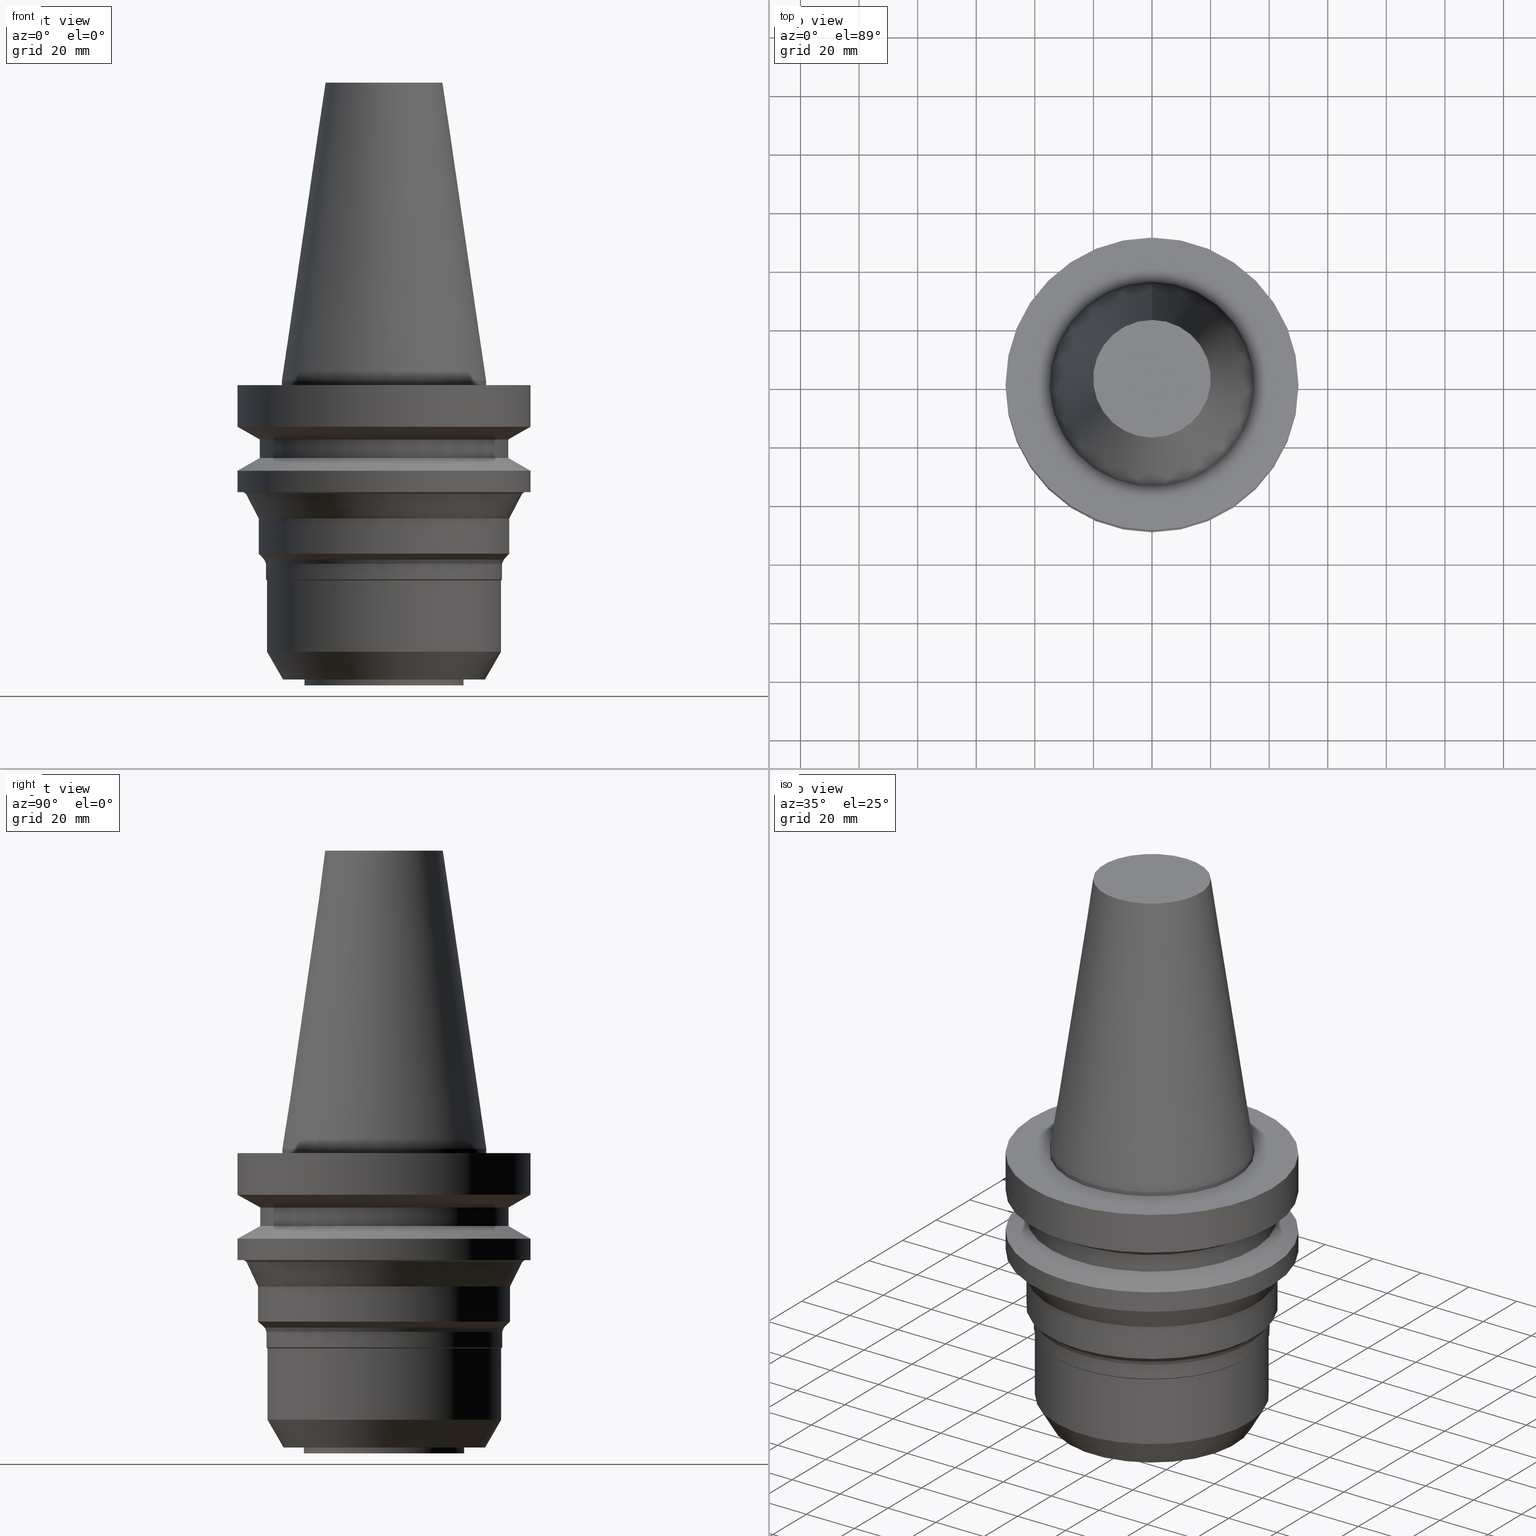
[diagram: canonical four-view strip — front | top / right | iso, engineering-drawing reading convention]
A machine part, canonical four-view strip (front | top / right | iso — engineering-drawing reading convention). The complete STEP part file that produces these views, byte-faithful:
ISO-10303-21;
HEADER;
FILE_DESCRIPTION((''),'1');
FILE_NAME('V:/90_\X2\53D65F9730C730FC30BF\X0\/00_\X2\6DE18DEF30C730FC30BF\X0\/ALL/BBT-BKUS\X2\FF76FF80FF9BFF78FF9E752852A05DE556F3\X0\201801/BBT50-MEGADS/BBT50-MEGA1.250DS-4.stp','2018-02-05T01:30:22',(''),(''),'Spatial Interop R21 SP3','Kubotek KeyCreator 2011 V10.0.2 (22737)',' ');
FILE_SCHEMA(('automotive_design'));
ENDSEC;
DATA;
#1=MECHANICAL_DESIGN_GEOMETRIC_PRESENTATION_REPRESENTATION(' ',(#10,#11,#12,#13,#14,#15,#16,#17,#18,#19,#20,#21,#22,#23,#24,#25,#26,#27,#28,#29,#30,#31,#32,#33,#34,#35,#36,#37,#38,#39,#40,#41,#42,#43,#44,#45,#46,#47,#48,#49,#50,#51,#52,#53),#6);
#2=PRODUCT_DEFINITION_CONTEXT('',#54,'design');
#3=APPLICATION_PROTOCOL_DEFINITION('INTERNATIONAL STANDARD','automotive_design',1994,#54);
#4=PRODUCT_CATEGORY_RELATIONSHIP('NONE','NONE',#55,#56);
#5=SHAPE_DEFINITION_REPRESENTATION(#57,#58);
#6= (GEOMETRIC_REPRESENTATION_CONTEXT(3)GLOBAL_UNCERTAINTY_ASSIGNED_CONTEXT((#61))GLOBAL_UNIT_ASSIGNED_CONTEXT((#63,#64,#65))REPRESENTATION_CONTEXT('NONE','WORKSPACE'));
#10=STYLED_ITEM('',(#67),#68);
#11=STYLED_ITEM('',(#69,#70),#71);
#12=STYLED_ITEM('',(#72),#73);
#13=STYLED_ITEM('',(#74,#75),#76);
#14=STYLED_ITEM('',(#77,#78),#79);
#15=STYLED_ITEM('',(#80,#81),#82);
#16=STYLED_ITEM('',(#83),#84);
#17=STYLED_ITEM('',(#85,#86),#87);
#18=STYLED_ITEM('',(#88,#89),#90);
#19=STYLED_ITEM('',(#91,#92),#93);
#20=STYLED_ITEM('',(#94),#95);
#21=STYLED_ITEM('',(#96),#97);
#22=STYLED_ITEM('',(#98,#99),#100);
#23=STYLED_ITEM('',(#101),#102);
#24=STYLED_ITEM('',(#103),#104);
#25=STYLED_ITEM('',(#105),#106);
#26=STYLED_ITEM('',(#107,#108),#109);
#27=STYLED_ITEM('',(#110),#111);
#28=STYLED_ITEM('',(#112),#113);
#29=STYLED_ITEM('',(#114,#115),#116);
#30=STYLED_ITEM('',(#117,#118),#119);
#31=STYLED_ITEM('',(#120,#121),#122);
#32=STYLED_ITEM('',(#123,#124),#125);
#33=STYLED_ITEM('',(#126),#127);
#34=STYLED_ITEM('',(#128),#129);
#35=STYLED_ITEM('',(#130),#131);
#36=STYLED_ITEM('',(#132,#133),#134);
#37=STYLED_ITEM('',(#135),#136);
#38=STYLED_ITEM('',(#137,#138),#139);
#39=STYLED_ITEM('',(#140),#141);
#40=STYLED_ITEM('',(#142),#143);
#41=STYLED_ITEM('',(#144,#145),#146);
#42=STYLED_ITEM('',(#147,#148),#149);
#43=STYLED_ITEM('',(#150),#151);
#44=STYLED_ITEM('',(#152,#153),#154);
#45=STYLED_ITEM('',(#155),#156);
#46=STYLED_ITEM('',(#157),#158);
#47=STYLED_ITEM('',(#159),#160);
#48=STYLED_ITEM('',(#161,#162),#163);
#49=STYLED_ITEM('',(#164,#165),#166);
#50=STYLED_ITEM('',(#167),#168);
#51=STYLED_ITEM('',(#169,#170),#171);
#52=STYLED_ITEM('',(#172,#173),#174);
#53=STYLED_ITEM('',(#175,#176),#177);
#54=APPLICATION_CONTEXT(' ');
#55=PRODUCT_CATEGORY('part','NONE');
#56=PRODUCT_RELATED_PRODUCT_CATEGORY('detail',' ',(#178));
#57=PRODUCT_DEFINITION_SHAPE('NONE','NONE',#179);
#58=ADVANCED_BREP_SHAPE_REPRESENTATION('Unnamed[1]',(#76,#180),#6);
#61=UNCERTAINTY_MEASURE_WITH_UNIT(LENGTH_MEASURE(1.0E-006),#63,'','');
#63= (CONVERSION_BASED_UNIT('MILLIMETRE',#183)LENGTH_UNIT()NAMED_UNIT(#186));
#64= (NAMED_UNIT(#188)PLANE_ANGLE_UNIT()SI_UNIT($,.RADIAN.));
#65= (NAMED_UNIT(#188)SOLID_ANGLE_UNIT()SI_UNIT($,.STERADIAN.));
#67=PRESENTATION_STYLE_ASSIGNMENT((#194));
#68=EDGE_CURVE('Unnamed[1]',#195,#195,#196,.T.);
#69=PRESENTATION_STYLE_ASSIGNMENT((#197));
#70=PRESENTATION_STYLE_ASSIGNMENT((#198));
#71=ADVANCED_FACE('Unnamed[1]',(#199),#200,.T.);
#72=PRESENTATION_STYLE_ASSIGNMENT((#201));
#73=EDGE_CURVE('Unnamed[1]',#202,#202,#203,.T.);
#74=PRESENTATION_STYLE_ASSIGNMENT((#204));
#75=PRESENTATION_STYLE_ASSIGNMENT((#205));
#76=MANIFOLD_SOLID_BREP('Unnamed[1]',#206);
#77=PRESENTATION_STYLE_ASSIGNMENT((#207));
#78=PRESENTATION_STYLE_ASSIGNMENT((#208));
#79=ADVANCED_FACE('Unnamed[1]',(#209,#210),#211,.T.);
#80=PRESENTATION_STYLE_ASSIGNMENT((#212));
#81=PRESENTATION_STYLE_ASSIGNMENT((#213));
#82=ADVANCED_FACE('Unnamed[1]',(#214),#215,.T.);
#83=PRESENTATION_STYLE_ASSIGNMENT((#216));
#84=EDGE_CURVE('Unnamed[1]',#217,#217,#218,.T.);
#85=PRESENTATION_STYLE_ASSIGNMENT((#219));
#86=PRESENTATION_STYLE_ASSIGNMENT((#220));
#87=ADVANCED_FACE('Unnamed[1]',(#221,#222),#223,.T.);
#88=PRESENTATION_STYLE_ASSIGNMENT((#224));
#89=PRESENTATION_STYLE_ASSIGNMENT((#225));
#90=ADVANCED_FACE('Unnamed[1]',(#226,#227),#228,.T.);
#91=PRESENTATION_STYLE_ASSIGNMENT((#229));
#92=PRESENTATION_STYLE_ASSIGNMENT((#230));
#93=ADVANCED_FACE('Unnamed[1]',(#231,#232),#233,.T.);
#94=PRESENTATION_STYLE_ASSIGNMENT((#234));
#95=EDGE_CURVE('Unnamed[1]',#235,#235,#236,.T.);
#96=PRESENTATION_STYLE_ASSIGNMENT((#237));
#97=EDGE_CURVE('Unnamed[1]',#238,#238,#239,.T.);
#98=PRESENTATION_STYLE_ASSIGNMENT((#240));
#99=PRESENTATION_STYLE_ASSIGNMENT((#241));
#100=ADVANCED_FACE('Unnamed[1]',(#242,#243),#244,.T.);
#101=PRESENTATION_STYLE_ASSIGNMENT((#245));
#102=EDGE_CURVE('Unnamed[1]',#246,#246,#247,.T.);
#103=PRESENTATION_STYLE_ASSIGNMENT((#248));
#104=EDGE_CURVE('Unnamed[1]',#249,#249,#250,.T.);
#105=PRESENTATION_STYLE_ASSIGNMENT((#251));
#106=EDGE_CURVE('Unnamed[1]',#252,#252,#253,.T.);
#107=PRESENTATION_STYLE_ASSIGNMENT((#254));
#108=PRESENTATION_STYLE_ASSIGNMENT((#255));
#109=ADVANCED_FACE('Unnamed[1]',(#256,#257),#258,.T.);
#110=PRESENTATION_STYLE_ASSIGNMENT((#259));
#111=EDGE_CURVE('Unnamed[1]',#260,#260,#261,.T.);
#112=PRESENTATION_STYLE_ASSIGNMENT((#262));
#113=EDGE_CURVE('Unnamed[1]',#263,#263,#264,.T.);
#114=PRESENTATION_STYLE_ASSIGNMENT((#265));
#115=PRESENTATION_STYLE_ASSIGNMENT((#266));
#116=ADVANCED_FACE('Unnamed[1]',(#267,#268),#269,.T.);
#117=PRESENTATION_STYLE_ASSIGNMENT((#270));
#118=PRESENTATION_STYLE_ASSIGNMENT((#271));
#119=ADVANCED_FACE('Unnamed[1]',(#272,#273),#274,.T.);
#120=PRESENTATION_STYLE_ASSIGNMENT((#275));
#121=PRESENTATION_STYLE_ASSIGNMENT((#276));
#122=ADVANCED_FACE('Unnamed[1]',(#277,#278),#279,.T.);
#123=PRESENTATION_STYLE_ASSIGNMENT((#280));
#124=PRESENTATION_STYLE_ASSIGNMENT((#281));
#125=ADVANCED_FACE('Unnamed[1]',(#282,#283),#284,.T.);
#126=PRESENTATION_STYLE_ASSIGNMENT((#285));
#127=EDGE_CURVE('Unnamed[1]',#286,#286,#287,.T.);
#128=PRESENTATION_STYLE_ASSIGNMENT((#288));
#129=EDGE_CURVE('Unnamed[1]',#289,#289,#290,.T.);
#130=PRESENTATION_STYLE_ASSIGNMENT((#291));
#131=EDGE_CURVE('Unnamed[1]',#292,#292,#293,.T.);
#132=PRESENTATION_STYLE_ASSIGNMENT((#294));
#133=PRESENTATION_STYLE_ASSIGNMENT((#295));
#134=ADVANCED_FACE('Unnamed[1]',(#296,#297),#298,.T.);
#135=PRESENTATION_STYLE_ASSIGNMENT((#299));
#136=EDGE_CURVE('Unnamed[1]',#300,#300,#301,.T.);
#137=PRESENTATION_STYLE_ASSIGNMENT((#302));
#138=PRESENTATION_STYLE_ASSIGNMENT((#303));
#139=ADVANCED_FACE('Unnamed[1]',(#304,#305),#306,.T.);
#140=PRESENTATION_STYLE_ASSIGNMENT((#307));
#141=EDGE_CURVE('Unnamed[1]',#308,#308,#309,.T.);
#142=PRESENTATION_STYLE_ASSIGNMENT((#310));
#143=EDGE_CURVE('Unnamed[1]',#311,#311,#312,.T.);
#144=PRESENTATION_STYLE_ASSIGNMENT((#313));
#145=PRESENTATION_STYLE_ASSIGNMENT((#314));
#146=ADVANCED_FACE('Unnamed[1]',(#315,#316),#317,.T.);
#147=PRESENTATION_STYLE_ASSIGNMENT((#318));
#148=PRESENTATION_STYLE_ASSIGNMENT((#319));
#149=ADVANCED_FACE('Unnamed[1]',(#320,#321),#322,.T.);
#150=PRESENTATION_STYLE_ASSIGNMENT((#323));
#151=EDGE_CURVE('Unnamed[1]',#324,#324,#325,.T.);
#152=PRESENTATION_STYLE_ASSIGNMENT((#326));
#153=PRESENTATION_STYLE_ASSIGNMENT((#327));
#154=ADVANCED_FACE('Unnamed[1]',(#328,#329),#330,.T.);
#155=PRESENTATION_STYLE_ASSIGNMENT((#331));
#156=EDGE_CURVE('Unnamed[1]',#332,#332,#333,.T.);
#157=PRESENTATION_STYLE_ASSIGNMENT((#334));
#158=EDGE_CURVE('Unnamed[1]',#335,#335,#336,.T.);
#159=PRESENTATION_STYLE_ASSIGNMENT((#337));
#160=EDGE_CURVE('Unnamed[1]',#338,#338,#339,.T.);
#161=PRESENTATION_STYLE_ASSIGNMENT((#340));
#162=PRESENTATION_STYLE_ASSIGNMENT((#341));
#163=ADVANCED_FACE('Unnamed[1]',(#342,#343),#344,.T.);
#164=PRESENTATION_STYLE_ASSIGNMENT((#345));
#165=PRESENTATION_STYLE_ASSIGNMENT((#346));
#166=ADVANCED_FACE('Unnamed[1]',(#347,#348),#349,.T.);
#167=PRESENTATION_STYLE_ASSIGNMENT((#350));
#168=EDGE_CURVE('Unnamed[1]',#351,#351,#352,.T.);
#169=PRESENTATION_STYLE_ASSIGNMENT((#353));
#170=PRESENTATION_STYLE_ASSIGNMENT((#354));
#171=ADVANCED_FACE('Unnamed[1]',(#355,#356),#357,.T.);
#172=PRESENTATION_STYLE_ASSIGNMENT((#358));
#173=PRESENTATION_STYLE_ASSIGNMENT((#359));
#174=ADVANCED_FACE('Unnamed[1]',(#360,#361),#362,.T.);
#175=PRESENTATION_STYLE_ASSIGNMENT((#363));
#176=PRESENTATION_STYLE_ASSIGNMENT((#364));
#177=ADVANCED_FACE('Unnamed[1]',(#365,#366),#367,.T.);
#178=PRODUCT('Unnamed[1]','Unnamed[1]','PART-Unnamed[1]-DESC',(#368));
#179=PRODUCT_DEFINITION('NONE','NONE',#369,#2);
#180=AXIS2_PLACEMENT_3D('',#370,#371,#372);
#183=LENGTH_MEASURE_WITH_UNIT(LENGTH_MEASURE(1.0),#373);
#186=DIMENSIONAL_EXPONENTS(1.0,0.0,0.0,0.0,0.0,0.0,0.0);
#188=DIMENSIONAL_EXPONENTS(0.0,0.0,0.0,0.0,0.0,0.0,0.0);
#194=CURVE_STYLE('',#374,POSITIVE_LENGTH_MEASURE(1000.0),#375);
#195=VERTEX_POINT('',#376);
#196=CIRCLE('',#377,48.1180339887503);
#197=SURFACE_STYLE_USAGE(.BOTH.,#378);
#198=CURVE_STYLE('',#379,POSITIVE_LENGTH_MEASURE(1000.0),#380);
#199=FACE_OUTER_BOUND('',#381,.T.);
#200=PLANE('',#382);
#201=CURVE_STYLE('',#383,POSITIVE_LENGTH_MEASURE(1000.0),#384);
#202=VERTEX_POINT('',#385);
#203=CIRCLE('',#386,47.2236067977504);
#204=SURFACE_STYLE_USAGE(.BOTH.,#387);
#205=CURVE_STYLE('',#388,POSITIVE_LENGTH_MEASURE(1000.0),#389);
#206=CLOSED_SHELL('',(#82,#174,#166,#177,#100,#116,#109,#139,#125,#79,#122,#146,#119,#171,#163,#90,#87,#149,#134,#154,#93,#71));
#207=SURFACE_STYLE_USAGE(.BOTH.,#390);
#208=CURVE_STYLE('',#391,POSITIVE_LENGTH_MEASURE(1000.0),#392);
#209=FACE_BOUND('',#393,.T.);
#210=FACE_OUTER_BOUND('',#394,.T.);
#211=PLANE('',#395);
#212=SURFACE_STYLE_USAGE(.BOTH.,#396);
#213=CURVE_STYLE('',#397,POSITIVE_LENGTH_MEASURE(1000.0),#398);
#214=FACE_OUTER_BOUND('',#399,.T.);
#215=PLANE('',#400);
#216=CURVE_STYLE('',#401,POSITIVE_LENGTH_MEASURE(1000.0),#402);
#217=VERTEX_POINT('',#403);
#218=CIRCLE('',#404,34.5151645827389);
#219=SURFACE_STYLE_USAGE(.BOTH.,#405);
#220=CURVE_STYLE('',#406,POSITIVE_LENGTH_MEASURE(1000.0),#407);
#221=FACE_BOUND('',#408,.T.);
#222=FACE_BOUND('',#409,.T.);
#223=CONICAL_SURFACE('',#410,40.1750000000001,0.785398163396606);
#224=SURFACE_STYLE_USAGE(.BOTH.,#411);
#225=CURVE_STYLE('',#412,POSITIVE_LENGTH_MEASURE(1000.0),#413);
#226=FACE_BOUND('',#414,.T.);
#227=FACE_BOUND('',#415,.T.);
#228=CYLINDRICAL_SURFACE('',#416,40.3500000000002);
#229=SURFACE_STYLE_USAGE(.BOTH.,#417);
#230=CURVE_STYLE('',#418,POSITIVE_LENGTH_MEASURE(1000.0),#419);
#231=FACE_BOUND('',#420,.T.);
#232=FACE_BOUND('',#421,.T.);
#233=CYLINDRICAL_SURFACE('',#422,27.336);
#234=CURVE_STYLE('',#423,POSITIVE_LENGTH_MEASURE(1000.0),#424);
#235=VERTEX_POINT('',#425);
#236=CIRCLE('',#426,20.0791666651884);
#237=CURVE_STYLE('',#427,POSITIVE_LENGTH_MEASURE(1000.0),#428);
#238=VERTEX_POINT('',#429);
#239=CIRCLE('',#430,50.0);
#240=SURFACE_STYLE_USAGE(.BOTH.,#431);
#241=CURVE_STYLE('',#432,POSITIVE_LENGTH_MEASURE(1000.0),#433);
#242=FACE_BOUND('',#434,.T.);
#243=FACE_BOUND('',#435,.T.);
#244=CYLINDRICAL_SURFACE('',#436,50.0);
#245=CURVE_STYLE('',#437,POSITIVE_LENGTH_MEASURE(1000.0),#438);
#246=VERTEX_POINT('',#439);
#247=CIRCLE('',#440,50.0);
#248=CURVE_STYLE('',#441,POSITIVE_LENGTH_MEASURE(1000.0),#442);
#249=VERTEX_POINT('',#443);
#250=CIRCLE('',#444,42.5);
#251=CURVE_STYLE('',#445,POSITIVE_LENGTH_MEASURE(1000.0),#446);
#252=VERTEX_POINT('',#447);
#253=CIRCLE('',#448,50.0);
#254=SURFACE_STYLE_USAGE(.BOTH.,#449);
#255=CURVE_STYLE('',#450,POSITIVE_LENGTH_MEASURE(1000.0),#451);
#256=FACE_BOUND('',#452,.T.);
#257=FACE_BOUND('',#453,.T.);
#258=CYLINDRICAL_SURFACE('',#454,42.5);
#259=CURVE_STYLE('',#455,POSITIVE_LENGTH_MEASURE(1000.0),#456);
#260=VERTEX_POINT('',#457);
#261=CIRCLE('',#458,43.0000000000002);
#262=CURVE_STYLE('',#459,POSITIVE_LENGTH_MEASURE(1000.0),#460);
#263=VERTEX_POINT('',#461);
#264=CIRCLE('',#462,43.0000000000001);
#265=SURFACE_STYLE_USAGE(.BOTH.,#463);
#266=CURVE_STYLE('',#464,POSITIVE_LENGTH_MEASURE(1000.0),#465);
#267=FACE_BOUND('',#466,.T.);
#268=FACE_BOUND('',#467,.T.);
#269=CONICAL_SURFACE('',#468,46.25,1.04719755108882);
#270=SURFACE_STYLE_USAGE(.BOTH.,#469);
#271=CURVE_STYLE('',#470,POSITIVE_LENGTH_MEASURE(1000.0),#471);
#272=FACE_BOUND('',#472,.T.);
#273=FACE_BOUND('',#473,.T.);
#274=CYLINDRICAL_SURFACE('',#474,43.0000000000001);
#275=SURFACE_STYLE_USAGE(.BOTH.,#475);
#276=CURVE_STYLE('',#476,POSITIVE_LENGTH_MEASURE(1000.0),#477);
#277=FACE_BOUND('',#478,.T.);
#278=FACE_BOUND('',#479,.T.);
#279=CONICAL_SURFACE('',#480,47.6708203932503,1.01722196789788);
#280=SURFACE_STYLE_USAGE(.BOTH.,#481);
#281=CURVE_STYLE('',#482,POSITIVE_LENGTH_MEASURE(1000.0),#483);
#282=FACE_BOUND('',#484,.T.);
#283=FACE_BOUND('',#485,.T.);
#284=CYLINDRICAL_SURFACE('',#486,50.0);
#285=CURVE_STYLE('',#487,POSITIVE_LENGTH_MEASURE(1000.0),#488);
#286=VERTEX_POINT('',#489);
#287=CIRCLE('',#490,40.3500000000003);
#288=CURVE_STYLE('',#491,POSITIVE_LENGTH_MEASURE(1000.0),#492);
#289=VERTEX_POINT('',#493);
#290=CIRCLE('',#494,27.336);
#291=CURVE_STYLE('',#495,POSITIVE_LENGTH_MEASURE(1000.0),#496);
#292=VERTEX_POINT('',#497);
#293=CIRCLE('',#498,27.336);
#294=SURFACE_STYLE_USAGE(.BOTH.,#499);
#295=CURVE_STYLE('',#500,POSITIVE_LENGTH_MEASURE(1000.0),#501);
#296=FACE_BOUND('',#502,.T.);
#297=FACE_BOUND('',#503,.T.);
#298=CONICAL_SURFACE('',#504,37.2575822913695,0.523598775598422);
#299=CURVE_STYLE('',#505,POSITIVE_LENGTH_MEASURE(1000.0),#506);
#300=VERTEX_POINT('',#507);
#301=CIRCLE('',#508,50.0);
#302=SURFACE_STYLE_USAGE(.BOTH.,#509);
#303=CURVE_STYLE('',#510,POSITIVE_LENGTH_MEASURE(1000.0),#511);
#304=FACE_BOUND('',#512,.T.);
#305=FACE_BOUND('',#513,.T.);
#306=CONICAL_SURFACE('',#514,46.25,1.04719755108882);
#307=CURVE_STYLE('',#515,POSITIVE_LENGTH_MEASURE(1000.0),#516);
#308=VERTEX_POINT('',#517);
#309=CIRCLE('',#518,34.925);
#310=CURVE_STYLE('',#519,POSITIVE_LENGTH_MEASURE(1000.0),#520);
#311=VERTEX_POINT('',#521);
#312=CIRCLE('',#522,42.5);
#313=SURFACE_STYLE_USAGE(.BOTH.,#523);
#314=CURVE_STYLE('',#524,POSITIVE_LENGTH_MEASURE(1000.0),#525);
#315=FACE_BOUND('',#526,.T.);
#316=FACE_BOUND('',#527,.T.);
#317=CONICAL_SURFACE('',#528,45.1118033988752,0.463647609000859);
#318=SURFACE_STYLE_USAGE(.BOTH.,#529);
#319=CURVE_STYLE('',#530,POSITIVE_LENGTH_MEASURE(1000.0),#531);
#320=FACE_BOUND('',#532,.T.);
#321=FACE_BOUND('',#533,.T.);
#322=CYLINDRICAL_SURFACE('',#534,40.0000000000001);
#323=CURVE_STYLE('',#535,POSITIVE_LENGTH_MEASURE(1000.0),#536);
#324=VERTEX_POINT('',#537);
#325=CIRCLE('',#538,34.925);
#326=SURFACE_STYLE_USAGE(.BOTH.,#539);
#327=CURVE_STYLE('',#540,POSITIVE_LENGTH_MEASURE(1000.0),#541);
#328=FACE_BOUND('',#542,.T.);
#329=FACE_OUTER_BOUND('',#543,.T.);
#330=PLANE('',#544);
#331=CURVE_STYLE('',#545,POSITIVE_LENGTH_MEASURE(1000.0),#546);
#332=VERTEX_POINT('',#547);
#333=CIRCLE('',#548,40.0000000000001);
#334=CURVE_STYLE('',#549,POSITIVE_LENGTH_MEASURE(1000.0),#550);
#335=VERTEX_POINT('',#551);
#336=CIRCLE('',#552,40.3500000000001);
#337=CURVE_STYLE('',#553,POSITIVE_LENGTH_MEASURE(1000.0),#554);
#338=VERTEX_POINT('',#555);
#339=CIRCLE('',#556,40.0000000000001);
#340=SURFACE_STYLE_USAGE(.BOTH.,#557);
#341=CURVE_STYLE('',#558,POSITIVE_LENGTH_MEASURE(1000.0),#559);
#342=FACE_BOUND('',#560,.T.);
#343=FACE_BOUND('',#561,.T.);
#344=CONICAL_SURFACE('',#562,40.6428932188139,0.392699081698822);
#345=SURFACE_STYLE_USAGE(.BOTH.,#563);
#346=CURVE_STYLE('',#564,POSITIVE_LENGTH_MEASURE(1000.0),#565);
#347=FACE_BOUND('',#566,.T.);
#348=FACE_BOUND('',#567,.T.);
#349=CYLINDRICAL_SURFACE('',#568,34.925);
#350=CURVE_STYLE('',#569,POSITIVE_LENGTH_MEASURE(1000.0),#570);
#351=VERTEX_POINT('',#571);
#352=CIRCLE('',#572,40.9357864376274);
#353=SURFACE_STYLE_USAGE(.BOTH.,#573);
#354=CURVE_STYLE('',#574,POSITIVE_LENGTH_MEASURE(1000.0),#575);
#355=FACE_BOUND('',#576,.T.);
#356=FACE_BOUND('',#577,.T.);
#357=CONICAL_SURFACE('',#578,41.9678932188138,0.785398163397619);
#358=SURFACE_STYLE_USAGE(.BOTH.,#579);
#359=CURVE_STYLE('',#580,POSITIVE_LENGTH_MEASURE(1000.0),#581);
#360=FACE_BOUND('',#582,.T.);
#361=FACE_BOUND('',#583,.T.);
#362=CONICAL_SURFACE('',#584,27.5020833325942,0.144812498253157);
#363=SURFACE_STYLE_USAGE(.BOTH.,#585);
#364=CURVE_STYLE('',#586,POSITIVE_LENGTH_MEASURE(1000.0),#587);
#365=FACE_OUTER_BOUND('',#588,.T.);
#366=FACE_BOUND('',#589,.T.);
#367=PLANE('',#590);
#368=PRODUCT_CONTEXT('',#54,'mechanical');
#369=PRODUCT_DEFINITION_FORMATION_WITH_SPECIFIED_SOURCE(' ','NONE',#178,.NOT_KNOWN.);
#370=CARTESIAN_POINT('',(0.0,0.0,0.0));
#371=DIRECTION('',(0.0,0.0,1.0));
#372=DIRECTION('',(1.0,0.0,0.0));
#373= (NAMED_UNIT(#186)LENGTH_UNIT()SI_UNIT(.MILLI.,.METRE.));
#374=DRAUGHTING_PRE_DEFINED_CURVE_FONT('continuous');
#375=COLOUR_RGB('',0.0,1.0,0.0);
#376=CARTESIAN_POINT('',(2.32682891837997E-015,48.1180339887503,-38.0));
#377=AXIS2_PLACEMENT_3D('',#592,#593,#594);
#378=SURFACE_SIDE_STYLE('',(#595));
#379=DRAUGHTING_PRE_DEFINED_CURVE_FONT('continuous');
#380=COLOUR_RGB('',0.0,1.0,0.0);
#381=EDGE_LOOP('',(#596));
#382=AXIS2_PLACEMENT_3D('',#597,#598,#599);
#383=DRAUGHTING_PRE_DEFINED_CURVE_FONT('continuous');
#384=COLOUR_RGB('',0.0,1.0,0.0);
#385=CARTESIAN_POINT('',(2.36067732342412E-015,47.2236067977504,-38.5527864045));
#386=AXIS2_PLACEMENT_3D('',#600,#601,#602);
#387=SURFACE_SIDE_STYLE('',(#603));
#388=DRAUGHTING_PRE_DEFINED_CURVE_FONT('continuous');
#389=COLOUR_RGB('',0.0,1.0,0.0);
#390=SURFACE_SIDE_STYLE('',(#604));
#391=DRAUGHTING_PRE_DEFINED_CURVE_FONT('continuous');
#392=COLOUR_RGB('',0.0,1.0,0.0);
#393=EDGE_LOOP('',(#605));
#394=EDGE_LOOP('',(#606));
#395=AXIS2_PLACEMENT_3D('',#607,#608,#609);
#396=SURFACE_SIDE_STYLE('',(#610));
#397=DRAUGHTING_PRE_DEFINED_CURVE_FONT('continuous');
#398=COLOUR_RGB('',0.0,1.0,0.0);
#399=EDGE_LOOP('',(#611));
#400=AXIS2_PLACEMENT_3D('',#612,#613,#614);
#401=DRAUGHTING_PRE_DEFINED_CURVE_FONT('continuous');
#402=COLOUR_RGB('',0.0,1.0,0.0);
#403=CARTESIAN_POINT('',(6.24569867565151E-015,34.5151645827389,-102.0));
#404=AXIS2_PLACEMENT_3D('',#615,#616,#617);
#405=SURFACE_SIDE_STYLE('',(#618));
#406=DRAUGHTING_PRE_DEFINED_CURVE_FONT('continuous');
#407=COLOUR_RGB('',0.0,1.0,0.0);
#408=EDGE_LOOP('',(#619));
#409=EDGE_LOOP('',(#620));
#410=AXIS2_PLACEMENT_3D('',#621,#622,#623);
#411=SURFACE_SIDE_STYLE('',(#624));
#412=DRAUGHTING_PRE_DEFINED_CURVE_FONT('continuous');
#413=COLOUR_RGB('',0.0,1.0,0.0);
#414=EDGE_LOOP('',(#625));
#415=EDGE_LOOP('',(#626));
#416=AXIS2_PLACEMENT_3D('',#627,#628,#629);
#417=SURFACE_SIDE_STYLE('',(#630));
#418=DRAUGHTING_PRE_DEFINED_CURVE_FONT('continuous');
#419=COLOUR_RGB('',0.0,1.0,0.0);
#420=EDGE_LOOP('',(#631));
#421=EDGE_LOOP('',(#632));
#422=AXIS2_PLACEMENT_3D('',#633,#634,#635);
#423=DRAUGHTING_PRE_DEFINED_CURVE_FONT('continuous');
#424=COLOUR_RGB('',0.0,1.0,0.0);
#425=CARTESIAN_POINT('',(-6.23345220766003E-015,20.0791666651884,101.8));
#426=AXIS2_PLACEMENT_3D('',#636,#637,#638);
#427=DRAUGHTING_PRE_DEFINED_CURVE_FONT('continuous');
#428=COLOUR_RGB('',0.0,1.0,0.0);
#429=CARTESIAN_POINT('',(9.61347737330674E-016,50.0,-15.7));
#430=AXIS2_PLACEMENT_3D('',#639,#640,#641);
#431=SURFACE_SIDE_STYLE('',(#642));
#432=DRAUGHTING_PRE_DEFINED_CURVE_FONT('continuous');
#433=COLOUR_RGB('',0.0,1.0,0.0);
#434=EDGE_LOOP('',(#643));
#435=EDGE_LOOP('',(#644));
#436=AXIS2_PLACEMENT_3D('',#645,#646,#647);
#437=DRAUGHTING_PRE_DEFINED_CURVE_FONT('continuous');
#438=COLOUR_RGB('',0.0,1.0,0.0);
#439=CARTESIAN_POINT('',(9.18485099360509E-017,50.0,-1.49999999999999));
#440=AXIS2_PLACEMENT_3D('',#648,#649,#650);
#441=DRAUGHTING_PRE_DEFINED_CURVE_FONT('continuous');
#442=COLOUR_RGB('',0.0,1.0,0.0);
#443=CARTESIAN_POINT('',(1.61468902694397E-015,42.5,-26.3698729800001));
#444=AXIS2_PLACEMENT_3D('',#651,#652,#653);
#445=DRAUGHTING_PRE_DEFINED_CURVE_FONT('continuous');
#446=COLOUR_RGB('',0.0,1.0,0.0);
#447=CARTESIAN_POINT('',(2.32682891837996E-015,50.0,-37.9999999999998));
#448=AXIS2_PLACEMENT_3D('',#654,#655,#656);
#449=SURFACE_SIDE_STYLE('',(#657));
#450=DRAUGHTING_PRE_DEFINED_CURVE_FONT('continuous');
#451=COLOUR_RGB('',0.0,1.0,0.0);
#452=EDGE_LOOP('',(#658));
#453=EDGE_LOOP('',(#659));
#454=AXIS2_PLACEMENT_3D('',#660,#661,#662);
#455=DRAUGHTING_PRE_DEFINED_CURVE_FONT('continuous');
#456=COLOUR_RGB('',0.0,1.0,0.0);
#457=CARTESIAN_POINT('',(3.61270805748471E-015,43.0000000000002,-59.0000000000003));
#458=AXIS2_PLACEMENT_3D('',#663,#664,#665);
#459=DRAUGHTING_PRE_DEFINED_CURVE_FONT('continuous');
#460=COLOUR_RGB('',0.0,1.0,0.0);
#461=CARTESIAN_POINT('',(2.87791997799625E-015,43.0000000000001,-46.9999999999995));
#462=AXIS2_PLACEMENT_3D('',#666,#667,#668);
#463=SURFACE_SIDE_STYLE('',(#669));
#464=DRAUGHTING_PRE_DEFINED_CURVE_FONT('continuous');
#465=COLOUR_RGB('',0.0,1.0,0.0);
#466=EDGE_LOOP('',(#670));
#467=EDGE_LOOP('',(#671));
#468=AXIS2_PLACEMENT_3D('',#672,#673,#674);
#469=SURFACE_SIDE_STYLE('',(#675));
#470=DRAUGHTING_PRE_DEFINED_CURVE_FONT('continuous');
#471=COLOUR_RGB('',0.0,1.0,0.0);
#472=EDGE_LOOP('',(#676));
#473=EDGE_LOOP('',(#677));
#474=AXIS2_PLACEMENT_3D('',#678,#679,#680);
#475=SURFACE_SIDE_STYLE('',(#681));
#476=DRAUGHTING_PRE_DEFINED_CURVE_FONT('continuous');
#477=COLOUR_RGB('',0.0,1.0,0.0);
#478=EDGE_LOOP('',(#682));
#479=EDGE_LOOP('',(#683));
#480=AXIS2_PLACEMENT_3D('',#684,#685,#686);
#481=SURFACE_SIDE_STYLE('',(#687));
#482=DRAUGHTING_PRE_DEFINED_CURVE_FONT('continuous');
#483=COLOUR_RGB('',0.0,1.0,0.0);
#484=EDGE_LOOP('',(#688));
#485=EDGE_LOOP('',(#689));
#486=AXIS2_PLACEMENT_3D('',#690,#691,#692);
#487=DRAUGHTING_PRE_DEFINED_CURVE_FONT('continuous');
#488=COLOUR_RGB('',0.0,1.0,0.0);
#489=CARTESIAN_POINT('',(3.82570028970404E-015,40.3500000000003,-62.4784271247455));
#490=AXIS2_PLACEMENT_3D('',#693,#694,#695);
#491=DRAUGHTING_PRE_DEFINED_CURVE_FONT('continuous');
#492=COLOUR_RGB('',0.0,1.0,0.0);
#493=CARTESIAN_POINT('',(6.24569867565151E-015,27.336,-102.0));
#494=AXIS2_PLACEMENT_3D('',#696,#697,#698);
#495=DRAUGHTING_PRE_DEFINED_CURVE_FONT('continuous');
#496=COLOUR_RGB('',0.0,1.0,0.0);
#497=CARTESIAN_POINT('',(6.36816335556624E-015,27.336,-104.0));
#498=AXIS2_PLACEMENT_3D('',#699,#700,#701);
#499=SURFACE_SIDE_STYLE('',(#702));
#500=DRAUGHTING_PRE_DEFINED_CURVE_FONT('continuous');
#501=COLOUR_RGB('',0.0,1.0,0.0);
#502=EDGE_LOOP('',(#703));
#503=EDGE_LOOP('',(#704));
#504=AXIS2_PLACEMENT_3D('',#705,#706,#707);
#505=DRAUGHTING_PRE_DEFINED_CURVE_FONT('continuous');
#506=COLOUR_RGB('',0.0,1.0,0.0);
#507=CARTESIAN_POINT('',(1.87983283669119E-015,50.0,-30.7000000000001));
#508=AXIS2_PLACEMENT_3D('',#708,#709,#710);
#509=SURFACE_SIDE_STYLE('',(#711));
#510=DRAUGHTING_PRE_DEFINED_CURVE_FONT('continuous');
#511=COLOUR_RGB('',0.0,1.0,0.0);
#512=EDGE_LOOP('',(#712));
#513=EDGE_LOOP('',(#713));
#514=AXIS2_PLACEMENT_3D('',#714,#715,#716);
#515=DRAUGHTING_PRE_DEFINED_CURVE_FONT('continuous');
#516=COLOUR_RGB('',0.0,1.0,0.0);
#517=CARTESIAN_POINT('',(9.18485099360511E-017,34.925,-1.5));
#518=AXIS2_PLACEMENT_3D('',#717,#718,#719);
#519=DRAUGHTING_PRE_DEFINED_CURVE_FONT('continuous');
#520=COLOUR_RGB('',0.0,1.0,0.0);
#521=CARTESIAN_POINT('',(1.2264915470779E-015,42.5,-20.03012702));
#522=AXIS2_PLACEMENT_3D('',#720,#721,#722);
#523=SURFACE_SIDE_STYLE('',(#723));
#524=DRAUGHTING_PRE_DEFINED_CURVE_FONT('continuous');
#525=COLOUR_RGB('',0.0,1.0,0.0);
#526=EDGE_LOOP('',(#724));
#527=EDGE_LOOP('',(#725));
#528=AXIS2_PLACEMENT_3D('',#726,#727,#728);
#529=SURFACE_SIDE_STYLE('',(#729));
#530=DRAUGHTING_PRE_DEFINED_CURVE_FONT('continuous');
#531=COLOUR_RGB('',0.0,1.0,0.0);
#532=EDGE_LOOP('',(#730));
#533=EDGE_LOOP('',(#731));
#534=AXIS2_PLACEMENT_3D('',#732,#733,#734);
#535=DRAUGHTING_PRE_DEFINED_CURVE_FONT('continuous');
#536=COLOUR_RGB('',0.0,1.0,0.0);
#537=CARTESIAN_POINT('',(-4.30483861169435E-031,34.925,4.27707894602213E-015));
#538=AXIS2_PLACEMENT_3D('',#735,#736,#737);
#539=SURFACE_SIDE_STYLE('',(#738));
#540=DRAUGHTING_PRE_DEFINED_CURVE_FONT('continuous');
#541=COLOUR_RGB('',0.0,1.0,0.0);
#542=EDGE_LOOP('',(#739));
#543=EDGE_LOOP('',(#740));
#544=AXIS2_PLACEMENT_3D('',#741,#742,#743);
#545=DRAUGHTING_PRE_DEFINED_CURVE_FONT('continuous');
#546=COLOUR_RGB('',0.0,1.0,0.0);
#547=CARTESIAN_POINT('',(5.66399061244881E-015,40.0000000000001,-92.4999863861531));
#548=AXIS2_PLACEMENT_3D('',#744,#745,#746);
#549=DRAUGHTING_PRE_DEFINED_CURVE_FONT('continuous');
#550=COLOUR_RGB('',0.0,1.0,0.0);
#551=CARTESIAN_POINT('',(4.15155264910952E-015,40.3500000000001,-67.7999999999999));
#552=AXIS2_PLACEMENT_3D('',#747,#748,#749);
#553=DRAUGHTING_PRE_DEFINED_CURVE_FONT('continuous');
#554=COLOUR_RGB('',0.0,1.0,0.0);
#555=CARTESIAN_POINT('',(4.17298396809464E-015,40.0000000000001,-68.1500000000005));
#556=AXIS2_PLACEMENT_3D('',#750,#751,#752);
#557=SURFACE_SIDE_STYLE('',(#753));
#558=DRAUGHTING_PRE_DEFINED_CURVE_FONT('continuous');
#559=COLOUR_RGB('',0.0,1.0,0.0);
#560=EDGE_LOOP('',(#754));
#561=EDGE_LOOP('',(#755));
#562=AXIS2_PLACEMENT_3D('',#756,#757,#758);
#563=SURFACE_SIDE_STYLE('',(#759));
#564=DRAUGHTING_PRE_DEFINED_CURVE_FONT('continuous');
#565=COLOUR_RGB('',0.0,1.0,0.0);
#566=EDGE_LOOP('',(#760));
#567=EDGE_LOOP('',(#761));
#568=AXIS2_PLACEMENT_3D('',#762,#763,#764);
#569=DRAUGHTING_PRE_DEFINED_CURVE_FONT('continuous');
#570=COLOUR_RGB('',0.0,1.0,0.0);
#571=CARTESIAN_POINT('',(3.73910468408049E-015,40.9357864376274,-61.0642135623724));
#572=AXIS2_PLACEMENT_3D('',#765,#766,#767);
#573=SURFACE_SIDE_STYLE('',(#768));
#574=DRAUGHTING_PRE_DEFINED_CURVE_FONT('continuous');
#575=COLOUR_RGB('',0.0,1.0,0.0);
#576=EDGE_LOOP('',(#769));
#577=EDGE_LOOP('',(#770));
#578=AXIS2_PLACEMENT_3D('',#771,#772,#773);
#579=SURFACE_SIDE_STYLE('',(#774));
#580=DRAUGHTING_PRE_DEFINED_CURVE_FONT('continuous');
#581=COLOUR_RGB('',0.0,1.0,0.0);
#582=EDGE_LOOP('',(#775));
#583=EDGE_LOOP('',(#776));
#584=AXIS2_PLACEMENT_3D('',#777,#778,#779);
#585=SURFACE_SIDE_STYLE('',(#780));
#586=DRAUGHTING_PRE_DEFINED_CURVE_FONT('continuous');
#587=COLOUR_RGB('',0.0,1.0,0.0);
#588=EDGE_LOOP('',(#781));
#589=EDGE_LOOP('',(#782));
#590=AXIS2_PLACEMENT_3D('',#783,#784,#785);
#592=CARTESIAN_POINT('',(2.32682891837997E-015,4.65365783675994E-015,-38.0));
#593=DIRECTION('',(6.12323399573677E-017,1.22464679914717E-016,-1.0));
#594=DIRECTION('',(-1.23259516440784E-032,1.0,1.22464679914717E-016));
#595=SURFACE_STYLE_FILL_AREA(#786);
#596=ORIENTED_EDGE('',*,*,#131,.T.);
#597=CARTESIAN_POINT('',(6.36816335556624E-015,13.668,-104.0));
#598=DIRECTION('',(6.12323399573677E-017,1.22464679914735E-016,-1.0));
#599=DIRECTION('',(-1.23259516440783E-032,1.0,1.22464679914735E-016));
#600=CARTESIAN_POINT('',(2.36067732342413E-015,4.72135464684825E-015,-38.5527864045));
#601=DIRECTION('',(6.12323399573677E-017,1.22464679914734E-016,-1.0));
#602=DIRECTION('',(-1.23259516440782E-032,1.0,1.22464679914734E-016));
#603=SURFACE_STYLE_FILL_AREA(#787);
#604=SURFACE_STYLE_FILL_AREA(#788);
#605=ORIENTED_EDGE('',*,*,#68,.F.);
#606=ORIENTED_EDGE('',*,*,#106,.T.);
#607=CARTESIAN_POINT('',(2.32682891837996E-015,49.0590169943751,-37.9999999999999));
#608=DIRECTION('',(6.12323399573677E-017,1.17164030132716E-013,-1.0));
#609=DIRECTION('',(-7.17905487659248E-030,1.0,1.17164030132716E-013));
#610=SURFACE_STYLE_FILL_AREA(#789);
#611=ORIENTED_EDGE('',*,*,#95,.F.);
#612=CARTESIAN_POINT('',(-6.23345220766003E-015,10.0395833325942,101.8));
#613=DIRECTION('',(-6.12323399573677E-017,-1.22464679914735E-016,1.0));
#614=DIRECTION('',(1.23259516440783E-032,-1.0,-1.22464679914735E-016));
#615=CARTESIAN_POINT('',(6.24569867565151E-015,1.2491397351303E-014,-102.0));
#616=DIRECTION('',(6.12323399573677E-017,1.22464679914761E-016,-1.0));
#617=DIRECTION('',(-1.23259516440797E-032,1.0,1.22464679914761E-016));
#618=SURFACE_STYLE_FILL_AREA(#790);
#619=ORIENTED_EDGE('',*,*,#160,.F.);
#620=ORIENTED_EDGE('',*,*,#158,.T.);
#621=CARTESIAN_POINT('',(4.16226830860208E-015,8.32453661720416E-015,-67.9750000000002));
#622=DIRECTION('',(-6.12323399573676E-017,-1.22464679914753E-016,1.0));
#623=DIRECTION('',(-1.23259516440792E-032,1.0,1.22464679914753E-016));
#624=SURFACE_STYLE_FILL_AREA(#791);
#625=ORIENTED_EDGE('',*,*,#158,.F.);
#626=ORIENTED_EDGE('',*,*,#127,.T.);
#627=CARTESIAN_POINT('',(3.98862646940678E-015,7.97725293881356E-015,-65.1392135623727));
#628=DIRECTION('',(6.12323399573677E-017,1.22464679914707E-016,-1.0));
#629=DIRECTION('',(-1.232595164408E-032,1.0,1.22464679914707E-016));
#630=SURFACE_STYLE_FILL_AREA(#792);
#631=ORIENTED_EDGE('',*,*,#131,.F.);
#632=ORIENTED_EDGE('',*,*,#129,.T.);
#633=CARTESIAN_POINT('',(6.30693101560887E-015,1.26138620312177E-014,-103.0));
#634=DIRECTION('',(6.12323399573677E-017,1.22464679914713E-016,-1.0));
#635=DIRECTION('',(-1.23259516440796E-032,1.0,1.22464679914713E-016));
#636=CARTESIAN_POINT('',(-6.23345220766003E-015,-1.24669044153201E-014,101.8));
#637=DIRECTION('',(6.12323399573677E-017,1.22464679914713E-016,-1.0));
#638=DIRECTION('',(-1.23259516440767E-032,1.0,1.22464679914713E-016));
#639=CARTESIAN_POINT('',(9.61347737330675E-016,1.92269547466135E-015,-15.7));
#640=DIRECTION('',(6.12323399573677E-017,1.22464679914736E-016,-1.0));
#641=DIRECTION('',(-1.23259516440783E-032,1.0,1.22464679914736E-016));
#642=SURFACE_STYLE_FILL_AREA(#793);
#643=ORIENTED_EDGE('',*,*,#97,.F.);
#644=ORIENTED_EDGE('',*,*,#102,.T.);
#645=CARTESIAN_POINT('',(5.26598123633363E-016,1.05319624726673E-015,-8.60000000000002));
#646=DIRECTION('',(6.12323399573677E-017,1.22464679914736E-016,-1.0));
#647=DIRECTION('',(-1.23259516440783E-032,1.0,1.22464679914736E-016));
#648=CARTESIAN_POINT('',(9.18485099360515E-017,1.83697019872103E-016,-1.5));
#649=DIRECTION('',(6.12323399573677E-017,1.22464679914736E-016,-1.0));
#650=DIRECTION('',(-1.23259516440783E-032,1.0,1.22464679914736E-016));
#651=CARTESIAN_POINT('',(1.61468902694397E-015,3.22937805388794E-015,-26.3698729800001));
#652=DIRECTION('',(6.12323399573677E-017,1.22464679914763E-016,-1.0));
#653=DIRECTION('',(-1.23259516440783E-032,1.0,1.22464679914763E-016));
#654=CARTESIAN_POINT('',(2.32682891837996E-015,4.65365783675992E-015,-37.9999999999998));
#655=DIRECTION('',(6.12323399573677E-017,1.22464679914736E-016,-1.0));
#656=DIRECTION('',(-1.23259516440783E-032,1.0,1.22464679914736E-016));
#657=SURFACE_STYLE_FILL_AREA(#794);
#658=ORIENTED_EDGE('',*,*,#104,.F.);
#659=ORIENTED_EDGE('',*,*,#143,.T.);
#660=CARTESIAN_POINT('',(1.42059028701093E-015,2.84118057402186E-015,-23.2));
#661=DIRECTION('',(6.12323399573677E-017,1.22464679914763E-016,-1.0));
#662=DIRECTION('',(-1.23259516440783E-032,1.0,1.22464679914763E-016));
#663=CARTESIAN_POINT('',(3.61270805748471E-015,7.22541611496941E-015,-59.0000000000003));
#664=DIRECTION('',(6.12323399573677E-017,1.22464679914755E-016,-1.0));
#665=DIRECTION('',(-1.23259516440783E-032,1.0,1.22464679914755E-016));
#666=CARTESIAN_POINT('',(2.87791997799625E-015,5.75583995599249E-015,-46.9999999999995));
#667=DIRECTION('',(6.12323399573677E-017,1.22464679914755E-016,-1.0));
#668=DIRECTION('',(-1.23259516440783E-032,1.0,1.22464679914755E-016));
#669=SURFACE_STYLE_FILL_AREA(#795);
#670=ORIENTED_EDGE('',*,*,#143,.F.);
#671=ORIENTED_EDGE('',*,*,#97,.T.);
#672=CARTESIAN_POINT('',(1.09391964220429E-015,2.18783928440857E-015,-17.86506351));
#673=DIRECTION('',(-6.12323399573676E-017,-1.22464679914748E-016,1.0));
#674=DIRECTION('',(-1.23259516440783E-032,1.0,1.22464679914748E-016));
#675=SURFACE_STYLE_FILL_AREA(#796);
#676=ORIENTED_EDGE('',*,*,#111,.F.);
#677=ORIENTED_EDGE('',*,*,#113,.T.);
#678=CARTESIAN_POINT('',(3.24531401774048E-015,6.49062803548096E-015,-52.9999999999999));
#679=DIRECTION('',(6.12323399573677E-017,1.22464679914755E-016,-1.0));
#680=DIRECTION('',(-1.23259516440783E-032,1.0,1.22464679914755E-016));
#681=SURFACE_STYLE_FILL_AREA(#797);
#682=ORIENTED_EDGE('',*,*,#73,.F.);
#683=ORIENTED_EDGE('',*,*,#68,.T.);
#684=CARTESIAN_POINT('',(2.34375312090205E-015,4.6875062418041E-015,-38.27639320225));
#685=DIRECTION('',(-6.12323399573676E-017,-1.22464679914725E-016,1.0));
#686=DIRECTION('',(-1.23259516440783E-032,1.0,1.22464679914725E-016));
#687=SURFACE_STYLE_FILL_AREA(#798);
#688=ORIENTED_EDGE('',*,*,#106,.F.);
#689=ORIENTED_EDGE('',*,*,#136,.T.);
#690=CARTESIAN_POINT('',(2.10333087753557E-015,4.20666175507115E-015,-34.3499999999999));
#691=DIRECTION('',(6.12323399573677E-017,1.22464679914736E-016,-1.0));
#692=DIRECTION('',(-1.23259516440783E-032,1.0,1.22464679914736E-016));
#693=CARTESIAN_POINT('',(3.82570028970404E-015,7.65140057940808E-015,-62.4784271247455));
#694=DIRECTION('',(6.12323399573677E-017,1.22464679914706E-016,-1.0));
#695=DIRECTION('',(-1.232595164408E-032,1.0,1.22464679914706E-016));
#696=CARTESIAN_POINT('',(6.24569867565151E-015,1.2491397351303E-014,-102.0));
#697=DIRECTION('',(6.12323399573677E-017,1.22464679914713E-016,-1.0));
#698=DIRECTION('',(-1.23259516440796E-032,1.0,1.22464679914713E-016));
#699=CARTESIAN_POINT('',(6.36816335556624E-015,1.27363267111325E-014,-104.0));
#700=DIRECTION('',(6.12323399573677E-017,1.22464679914713E-016,-1.0));
#701=DIRECTION('',(-1.23259516440796E-032,1.0,1.22464679914713E-016));
#702=SURFACE_STYLE_FILL_AREA(#799);
#703=ORIENTED_EDGE('',*,*,#84,.F.);
#704=ORIENTED_EDGE('',*,*,#156,.T.);
#705=CARTESIAN_POINT('',(5.95484464405016E-015,1.19096892881003E-014,-97.2499931930766));
#706=DIRECTION('',(-6.12323399573677E-017,-1.22464679914739E-016,1.0));
#707=DIRECTION('',(-1.23259516440765E-032,1.0,1.22464679914739E-016));
#708=CARTESIAN_POINT('',(1.87983283669119E-015,3.75966567338238E-015,-30.7000000000001));
#709=DIRECTION('',(6.12323399573677E-017,1.22464679914736E-016,-1.0));
#710=DIRECTION('',(-1.23259516440783E-032,1.0,1.22464679914736E-016));
#711=SURFACE_STYLE_FILL_AREA(#800);
#712=ORIENTED_EDGE('',*,*,#136,.F.);
#713=ORIENTED_EDGE('',*,*,#104,.T.);
#714=CARTESIAN_POINT('',(1.74726093181758E-015,3.49452186363516E-015,-28.5349364900001));
#715=DIRECTION('',(6.12323399573676E-017,1.22464679914748E-016,-1.0));
#716=DIRECTION('',(-1.23259516440783E-032,1.0,1.22464679914748E-016));
#717=CARTESIAN_POINT('',(9.18485099360515E-017,1.83697019872103E-016,-1.5));
#718=DIRECTION('',(6.12323399573677E-017,1.22464679914705E-016,-1.0));
#719=DIRECTION('',(-1.23259516440793E-032,1.0,1.22464679914705E-016));
#720=CARTESIAN_POINT('',(1.2264915470779E-015,2.45298309415579E-015,-20.03012702));
#721=DIRECTION('',(6.12323399573677E-017,1.22464679914763E-016,-1.0));
#722=DIRECTION('',(-1.23259516440783E-032,1.0,1.22464679914763E-016));
#723=SURFACE_STYLE_FILL_AREA(#801);
#724=ORIENTED_EDGE('',*,*,#113,.F.);
#725=ORIENTED_EDGE('',*,*,#73,.T.);
#726=CARTESIAN_POINT('',(2.61929865071019E-015,5.23859730142037E-015,-42.7763932022497));
#727=DIRECTION('',(-6.12323399573677E-017,-1.22464679914744E-016,1.0));
#728=DIRECTION('',(-1.23259516440783E-032,1.0,1.22464679914744E-016));
#729=SURFACE_STYLE_FILL_AREA(#802);
#730=ORIENTED_EDGE('',*,*,#156,.F.);
#731=ORIENTED_EDGE('',*,*,#160,.T.);
#732=CARTESIAN_POINT('',(4.91848729027172E-015,9.83697458054344E-015,-80.3249931930768));
#733=DIRECTION('',(6.12323399573677E-017,1.2246467991472E-016,-1.0));
#734=DIRECTION('',(-1.23259516440783E-032,1.0,1.2246467991472E-016));
#735=CARTESIAN_POINT('',(0.0,0.0,0.0));
#736=DIRECTION('',(6.12323399573677E-017,1.22464679914705E-016,-1.0));
#737=DIRECTION('',(-1.23259516440793E-032,1.0,1.22464679914705E-016));
#738=SURFACE_STYLE_FILL_AREA(#803);
#739=ORIENTED_EDGE('',*,*,#129,.F.);
#740=ORIENTED_EDGE('',*,*,#84,.T.);
#741=CARTESIAN_POINT('',(6.24569867565151E-015,30.9255822913694,-102.0));
#742=DIRECTION('',(6.12323399573677E-017,1.22464679914735E-016,-1.0));
#743=DIRECTION('',(-1.23259516440783E-032,1.0,1.22464679914735E-016));
#744=CARTESIAN_POINT('',(5.66399061244881E-015,1.13279812248976E-014,-92.4999863861531));
#745=DIRECTION('',(6.12323399573677E-017,1.2246467991472E-016,-1.0));
#746=DIRECTION('',(-1.23259516440783E-032,1.0,1.2246467991472E-016));
#747=CARTESIAN_POINT('',(4.15155264910952E-015,8.30310529821904E-015,-67.7999999999999));
#748=DIRECTION('',(6.12323399573677E-017,1.22464679914707E-016,-1.0));
#749=DIRECTION('',(-1.23259516440801E-032,1.0,1.22464679914707E-016));
#750=CARTESIAN_POINT('',(4.17298396809464E-015,8.34596793618927E-015,-68.1500000000005));
#751=DIRECTION('',(6.12323399573677E-017,1.2246467991472E-016,-1.0));
#752=DIRECTION('',(-1.23259516440783E-032,1.0,1.2246467991472E-016));
#753=SURFACE_STYLE_FILL_AREA(#804);
#754=ORIENTED_EDGE('',*,*,#127,.F.);
#755=ORIENTED_EDGE('',*,*,#168,.T.);
#756=CARTESIAN_POINT('',(3.78240248689226E-015,7.56480497378452E-015,-61.771320343559));
#757=DIRECTION('',(-6.12323399573677E-017,-1.22464679914762E-016,1.0));
#758=DIRECTION('',(-1.23259516440783E-032,1.0,1.22464679914763E-016));
#759=SURFACE_STYLE_FILL_AREA(#805);
#760=ORIENTED_EDGE('',*,*,#141,.F.);
#761=ORIENTED_EDGE('',*,*,#151,.T.);
#762=CARTESIAN_POINT('',(4.59242549680257E-017,9.18485099360515E-017,-0.75));
#763=DIRECTION('',(6.12323399573677E-017,1.22464679914705E-016,-1.0));
#764=DIRECTION('',(-1.23259516440793E-032,1.0,1.22464679914705E-016));
#765=CARTESIAN_POINT('',(3.73910468408049E-015,7.47820936816097E-015,-61.0642135623724));
#766=DIRECTION('',(6.12323399573677E-017,1.22464679914739E-016,-1.0));
#767=DIRECTION('',(-1.23259516440766E-032,1.0,1.22464679914739E-016));
#768=SURFACE_STYLE_FILL_AREA(#806);
#769=ORIENTED_EDGE('',*,*,#168,.F.);
#770=ORIENTED_EDGE('',*,*,#111,.T.);
#771=CARTESIAN_POINT('',(3.6759063707826E-015,7.35181274156519E-015,-60.0321067811863));
#772=DIRECTION('',(-6.12323399573677E-017,-1.22464679914709E-016,1.0));
#773=DIRECTION('',(-1.23259516440774E-032,1.0,1.22464679914709E-016));
#774=SURFACE_STYLE_FILL_AREA(#807);
#775=ORIENTED_EDGE('',*,*,#151,.F.);
#776=ORIENTED_EDGE('',*,*,#95,.T.);
#777=CARTESIAN_POINT('',(-3.11672610383001E-015,-6.23345220766003E-015,50.9));
#778=DIRECTION('',(6.12323399573677E-017,1.22464679914737E-016,-1.0));
#779=DIRECTION('',(-1.23259516440767E-032,1.0,1.22464679914737E-016));
#780=SURFACE_STYLE_FILL_AREA(#808);
#781=ORIENTED_EDGE('',*,*,#102,.F.);
#782=ORIENTED_EDGE('',*,*,#141,.T.);
#783=CARTESIAN_POINT('',(9.1848509936051E-017,42.4625,-1.49999999999999));
#784=DIRECTION('',(-6.12323399573677E-017,-1.22464679914735E-016,1.0));
#785=DIRECTION('',(1.23259516440783E-032,-1.0,-1.22464679914735E-016));
#786=FILL_AREA_STYLE('',(#809));
#787=FILL_AREA_STYLE('',(#810));
#788=FILL_AREA_STYLE('',(#811));
#789=FILL_AREA_STYLE('',(#812));
#790=FILL_AREA_STYLE('',(#813));
#791=FILL_AREA_STYLE('',(#814));
#792=FILL_AREA_STYLE('',(#815));
#793=FILL_AREA_STYLE('',(#816));
#794=FILL_AREA_STYLE('',(#817));
#795=FILL_AREA_STYLE('',(#818));
#796=FILL_AREA_STYLE('',(#819));
#797=FILL_AREA_STYLE('',(#820));
#798=FILL_AREA_STYLE('',(#821));
#799=FILL_AREA_STYLE('',(#822));
#800=FILL_AREA_STYLE('',(#823));
#801=FILL_AREA_STYLE('',(#824));
#802=FILL_AREA_STYLE('',(#825));
#803=FILL_AREA_STYLE('',(#826));
#804=FILL_AREA_STYLE('',(#827));
#805=FILL_AREA_STYLE('',(#828));
#806=FILL_AREA_STYLE('',(#829));
#807=FILL_AREA_STYLE('',(#830));
#808=FILL_AREA_STYLE('',(#831));
#809=FILL_AREA_STYLE_COLOUR('',#832);
#810=FILL_AREA_STYLE_COLOUR('',#833);
#811=FILL_AREA_STYLE_COLOUR('',#834);
#812=FILL_AREA_STYLE_COLOUR('',#835);
#813=FILL_AREA_STYLE_COLOUR('',#836);
#814=FILL_AREA_STYLE_COLOUR('',#837);
#815=FILL_AREA_STYLE_COLOUR('',#838);
#816=FILL_AREA_STYLE_COLOUR('',#839);
#817=FILL_AREA_STYLE_COLOUR('',#840);
#818=FILL_AREA_STYLE_COLOUR('',#841);
#819=FILL_AREA_STYLE_COLOUR('',#842);
#820=FILL_AREA_STYLE_COLOUR('',#843);
#821=FILL_AREA_STYLE_COLOUR('',#844);
#822=FILL_AREA_STYLE_COLOUR('',#845);
#823=FILL_AREA_STYLE_COLOUR('',#846);
#824=FILL_AREA_STYLE_COLOUR('',#847);
#825=FILL_AREA_STYLE_COLOUR('',#848);
#826=FILL_AREA_STYLE_COLOUR('',#849);
#827=FILL_AREA_STYLE_COLOUR('',#850);
#828=FILL_AREA_STYLE_COLOUR('',#851);
#829=FILL_AREA_STYLE_COLOUR('',#852);
#830=FILL_AREA_STYLE_COLOUR('',#853);
#831=FILL_AREA_STYLE_COLOUR('',#854);
#832=COLOUR_RGB('',0.0,1.0,0.0);
#833=COLOUR_RGB('',0.0,1.0,0.0);
#834=COLOUR_RGB('',0.0,1.0,0.0);
#835=COLOUR_RGB('',0.0,1.0,0.0);
#836=COLOUR_RGB('',0.0,1.0,0.0);
#837=COLOUR_RGB('',0.0,1.0,0.0);
#838=COLOUR_RGB('',0.0,1.0,0.0);
#839=COLOUR_RGB('',0.0,1.0,0.0);
#840=COLOUR_RGB('',0.0,1.0,0.0);
#841=COLOUR_RGB('',0.0,1.0,0.0);
#842=COLOUR_RGB('',0.0,1.0,0.0);
#843=COLOUR_RGB('',0.0,1.0,0.0);
#844=COLOUR_RGB('',0.0,1.0,0.0);
#845=COLOUR_RGB('',0.0,1.0,0.0);
#846=COLOUR_RGB('',0.0,1.0,0.0);
#847=COLOUR_RGB('',0.0,1.0,0.0);
#848=COLOUR_RGB('',0.0,1.0,0.0);
#849=COLOUR_RGB('',0.0,1.0,0.0);
#850=COLOUR_RGB('',0.0,1.0,0.0);
#851=COLOUR_RGB('',0.0,1.0,0.0);
#852=COLOUR_RGB('',0.0,1.0,0.0);
#853=COLOUR_RGB('',0.0,1.0,0.0);
#854=COLOUR_RGB('',0.0,1.0,0.0);
ENDSEC;
END-ISO-10303-21;
